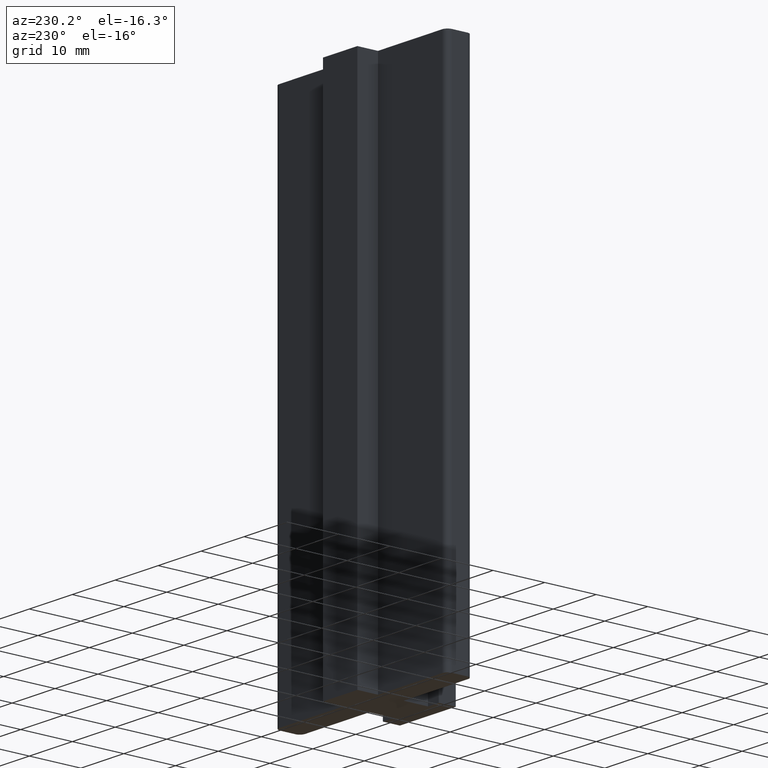
[diagram: clean part render]
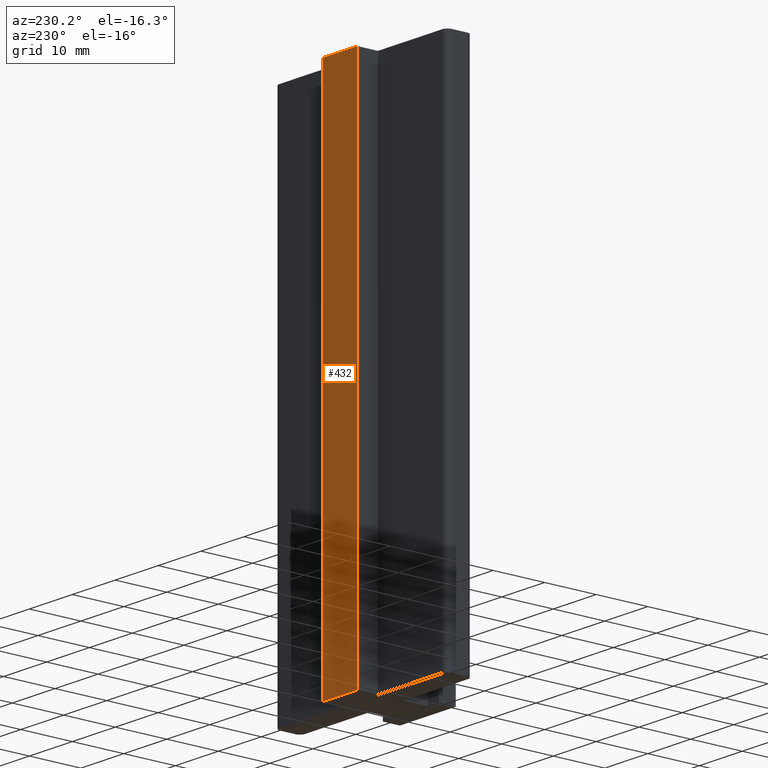
[diagram: same view with one face highlighted and labeled with its STEP entity id]
A machine part, auxiliary view. The second image highlights one B-rep face of the part: STEP entity #432.
In plain terms, the highlighted planar face has unit normal (0, 1, 0).
Its self-contained STEP definition (entity closure, byte-faithful):
#46=FACE_OUTER_BOUND('',#68,.T.);
#68=EDGE_LOOP('',(#351,#352,#353,#354));
#72=LINE('',#587,#124);
#120=LINE('',#698,#172);
#121=LINE('',#700,#173);
#122=LINE('',#701,#174);
#124=VECTOR('',#472,100.);
#172=VECTOR('',#572,100.);
#173=VECTOR('',#575,8.);
#174=VECTOR('',#576,8.);
#176=VERTEX_POINT('',#584);
#177=VERTEX_POINT('',#586);
#213=VERTEX_POINT('',#694);
#214=VERTEX_POINT('',#696);
#216=EDGE_CURVE('',#176,#177,#72,.T.);
#272=EDGE_CURVE('',#213,#214,#120,.T.);
#273=EDGE_CURVE('',#176,#213,#121,.T.);
#274=EDGE_CURVE('',#177,#214,#122,.T.);
#351=ORIENTED_EDGE('',*,*,#273,.T.);
#352=ORIENTED_EDGE('',*,*,#272,.T.);
#353=ORIENTED_EDGE('',*,*,#274,.F.);
#354=ORIENTED_EDGE('',*,*,#216,.F.);
#410=PLANE('',#464);
#432=ADVANCED_FACE('',(#46),#410,.T.);
#464=AXIS2_PLACEMENT_3D('',#699,#573,#574);
#472=DIRECTION('',(0.,0.,1.));
#572=DIRECTION('',(0.,0.,1.));
#573=DIRECTION('center_axis',(0.,1.,0.));
#574=DIRECTION('ref_axis',(-1.,0.,0.));
#575=DIRECTION('',(-1.,0.,0.));
#576=DIRECTION('',(-1.,0.,0.));
#584=CARTESIAN_POINT('',(4.,11.35,0.));
#586=CARTESIAN_POINT('',(4.,11.35,100.));
#587=CARTESIAN_POINT('',(4.,11.35,0.));
#694=CARTESIAN_POINT('',(-4.,11.35,0.));
#696=CARTESIAN_POINT('',(-4.,11.35,100.));
#698=CARTESIAN_POINT('',(-4.,11.35,0.));
#699=CARTESIAN_POINT('Origin',(4.,11.35,0.));
#700=CARTESIAN_POINT('',(4.,11.35,0.));
#701=CARTESIAN_POINT('',(4.,11.35,100.));